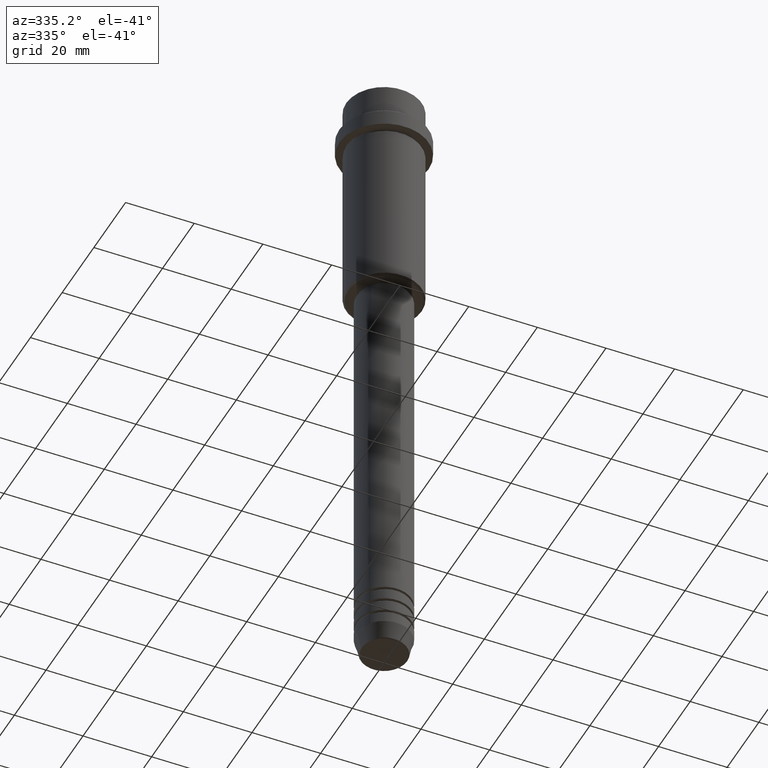
[diagram: clean part render]
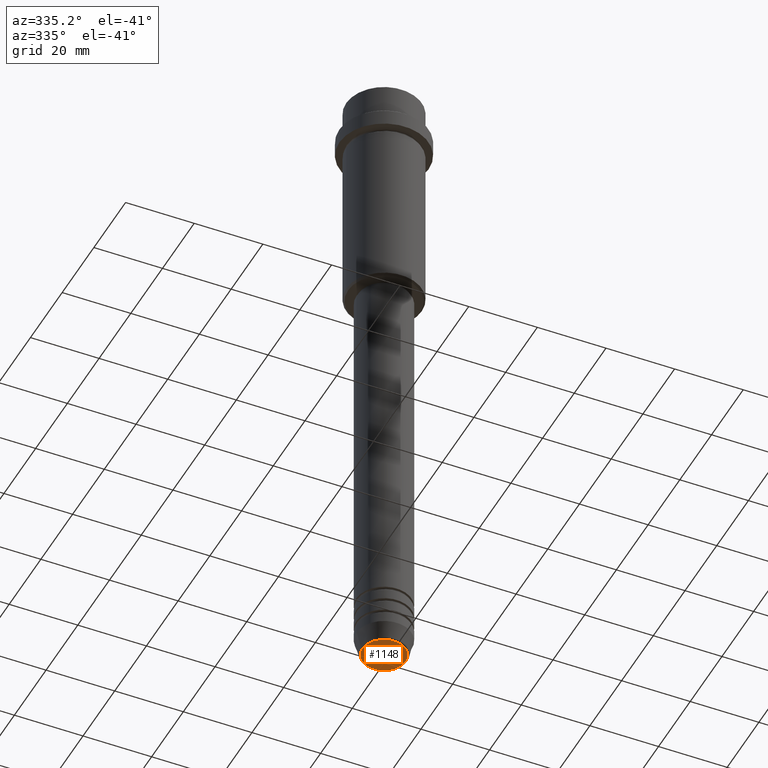
[diagram: same view with one face highlighted and labeled with its STEP entity id]
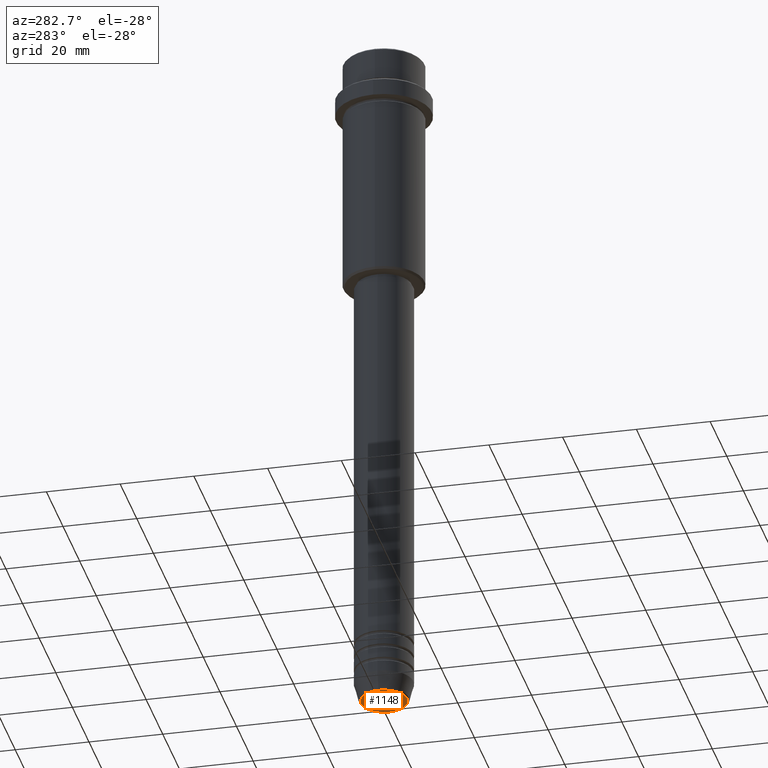
[diagram: same view with one face highlighted and labeled with its STEP entity id]
A machine part, auxiliary view. The second image highlights one B-rep face of the part: STEP entity #1148.
A second angle (auxiliary view) of the same face is appended — the face is thin or edge-on in the first view.
In plain terms, the highlighted planar face has unit normal (0, -0, 1).
Its self-contained STEP definition (entity closure, byte-faithful):
#122 = DIRECTION ( 'NONE',  ( 0.000000000000000000, -0.000000000000000000, 1.000000000000000000 ) ) ;
#137 = ORIENTED_EDGE ( 'NONE', *, *, #417, .T. ) ;
#253 = CARTESIAN_POINT ( 'NONE',  ( 0.000000000000000000, 0.000000000000000000, -190.0000000000000000 ) ) ;
#257 = AXIS2_PLACEMENT_3D ( 'NONE', #829, #721, #411 ) ;
#323 = CARTESIAN_POINT ( 'NONE',  ( 0.000000000000000000, 0.000000000000000000, -190.0000000000000000 ) ) ;
#334 = AXIS2_PLACEMENT_3D ( 'NONE', #253, #122, #569 ) ;
#353 = VERTEX_POINT ( 'NONE', #657 ) ;
#409 = EDGE_CURVE ( 'NONE', #752, #353, #500, .T. ) ;
#411 = DIRECTION ( 'NONE',  ( 1.000000000000000000, 0.000000000000000000, 0.000000000000000000 ) ) ;
#417 = EDGE_CURVE ( 'NONE', #353, #752, #1061, .T. ) ;
#500 = CIRCLE ( 'NONE', #1265, 6.276590543854904780 ) ;
#569 = DIRECTION ( 'NONE',  ( 1.000000000000000000, 0.000000000000000000, 0.000000000000000000 ) ) ;
#606 = DIRECTION ( 'NONE',  ( 1.000000000000000000, 0.000000000000000000, 0.000000000000000000 ) ) ;
#657 = CARTESIAN_POINT ( 'NONE',  ( 6.276590543854904780, 0.000000000000000000, -190.0000000000000000 ) ) ;
#674 = FACE_OUTER_BOUND ( 'NONE', #796, .T. ) ;
#721 = DIRECTION ( 'NONE',  ( 0.000000000000000000, 0.000000000000000000, -1.000000000000000000 ) ) ;
#729 = ORIENTED_EDGE ( 'NONE', *, *, #409, .T. ) ;
#752 = VERTEX_POINT ( 'NONE', #1279 ) ;
#775 = PLANE ( 'NONE',  #334 ) ;
#796 = EDGE_LOOP ( 'NONE', ( #137, #729 ) ) ;
#829 = CARTESIAN_POINT ( 'NONE',  ( 0.000000000000000000, 0.000000000000000000, -190.0000000000000000 ) ) ;
#1061 = CIRCLE ( 'NONE', #257, 6.276590543854904780 ) ;
#1148 = ADVANCED_FACE ( 'NONE', ( #674 ), #775, .F. ) ;
#1156 = DIRECTION ( 'NONE',  ( 0.000000000000000000, 0.000000000000000000, -1.000000000000000000 ) ) ;
#1265 = AXIS2_PLACEMENT_3D ( 'NONE', #323, #1156, #606 ) ;
#1279 = CARTESIAN_POINT ( 'NONE',  ( -6.276590543854904780, 7.982336011935122327E-16, -190.0000000000000000 ) ) ;